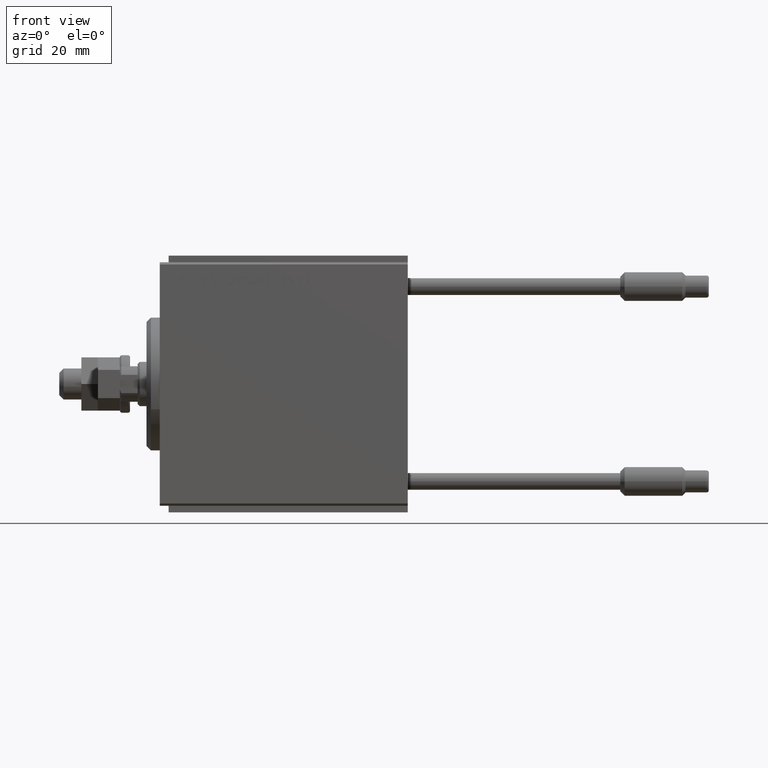
[diagram: clean part render]
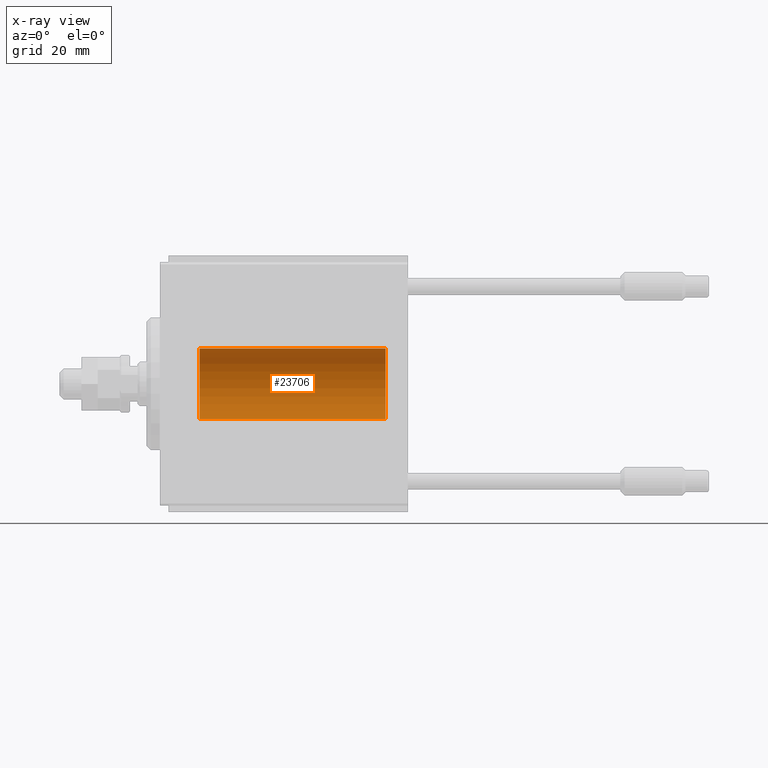
[diagram: x-ray — body ghosted, one internal face saturated and labeled with its STEP entity id]
A machine part, front view, then the same camera in x-ray: the body is ghosted and one INTERNAL B-rep face — a face not visible from any outside direction — is saturated and labeled: STEP entity #23706.
In plain terms, the highlighted cylindrical surface (edge-blend (fillet) strip) has radius 8 mm, axis along (-1, -0, -0).
Its self-contained STEP definition (entity closure, byte-faithful):
#1131 = CARTESIAN_POINT ( 'NONE',  ( 51.00000000000000000, 9.797174393178823685E-16, -7.999999999999998224 ) ) ;
#1434 = CARTESIAN_POINT ( 'NONE',  ( 51.00000000000000000, 9.797174393178823685E-16, -7.999999999999998224 ) ) ;
#5322 = VERTEX_POINT ( 'NONE', #48127 ) ;
#8339 = DIRECTION ( 'NONE',  ( 0.000000000000000000, 0.000000000000000000, 1.000000000000000000 ) ) ;
#8537 = CARTESIAN_POINT ( 'NONE',  ( 9.000000000000001776, 0.000000000000000000, 0.000000000000000000 ) ) ;
#11242 = ORIENTED_EDGE ( 'NONE', *, *, #17652, .F. ) ;
#12582 = AXIS2_PLACEMENT_3D ( 'NONE', #24433, #16771, #8339 ) ;
#12782 = VERTEX_POINT ( 'NONE', #30216 ) ;
#14194 = VECTOR ( 'NONE', #48260, 1000.000000000000000 ) ;
#14324 = EDGE_CURVE ( 'NONE', #36300, #24009, #28514, .T. ) ;
#15538 = CARTESIAN_POINT ( 'NONE',  ( 9.000000000000001776, 9.797174393178823685E-16, -7.999999999999998224 ) ) ;
#16070 = EDGE_CURVE ( 'NONE', #12782, #5322, #32680, .T. ) ;
#16771 = DIRECTION ( 'NONE',  ( -1.000000000000000000, 0.000000000000000000, 0.000000000000000000 ) ) ;
#17037 = DIRECTION ( 'NONE',  ( -1.000000000000000000, -0.000000000000000000, -0.000000000000000000 ) ) ;
#17652 = EDGE_CURVE ( 'NONE', #12782, #36300, #20771, .T. ) ;
#20771 = CIRCLE ( 'NONE', #12582, 7.999999999999998224 ) ;
#21073 = CYLINDRICAL_SURFACE ( 'NONE', #36440, 7.999999999999998224 ) ;
#23706 = ADVANCED_FACE ( 'NONE', ( #29727 ), #21073, .F. ) ;
#24009 = VERTEX_POINT ( 'NONE', #15538 ) ;
#24433 = CARTESIAN_POINT ( 'NONE',  ( 51.00000000000000000, 0.000000000000000000, 0.000000000000000000 ) ) ;
#25406 = CARTESIAN_POINT ( 'NONE',  ( 51.00000000000000000, 0.000000000000000000, 0.000000000000000000 ) ) ;
#27440 = DIRECTION ( 'NONE',  ( -1.000000000000000000, 0.000000000000000000, 0.000000000000000000 ) ) ;
#28514 = LINE ( 'NONE', #1434, #29603 ) ;
#29591 = CARTESIAN_POINT ( 'NONE',  ( 51.00000000000000000, 0.000000000000000000, 7.999999999999998224 ) ) ;
#29603 = VECTOR ( 'NONE', #17037, 1000.000000000000000 ) ;
#29701 = ORIENTED_EDGE ( 'NONE', *, *, #32690, .T. ) ;
#29727 = FACE_OUTER_BOUND ( 'NONE', #39246, .T. ) ;
#30216 = CARTESIAN_POINT ( 'NONE',  ( 51.00000000000000000, 0.000000000000000000, 7.999999999999998224 ) ) ;
#32680 = LINE ( 'NONE', #29591, #14194 ) ;
#32690 = EDGE_CURVE ( 'NONE', #5322, #24009, #48959, .T. ) ;
#33069 = DIRECTION ( 'NONE',  ( 0.000000000000000000, 0.000000000000000000, 1.000000000000000000 ) ) ;
#35934 = ORIENTED_EDGE ( 'NONE', *, *, #14324, .F. ) ;
#36300 = VERTEX_POINT ( 'NONE', #1131 ) ;
#36440 = AXIS2_PLACEMENT_3D ( 'NONE', #25406, #40479, #33069 ) ;
#39246 = EDGE_LOOP ( 'NONE', ( #35934, #11242, #40403, #29701 ) ) ;
#40403 = ORIENTED_EDGE ( 'NONE', *, *, #16070, .T. ) ;
#40479 = DIRECTION ( 'NONE',  ( -1.000000000000000000, -0.000000000000000000, -0.000000000000000000 ) ) ;
#43519 = DIRECTION ( 'NONE',  ( 0.000000000000000000, 0.000000000000000000, 1.000000000000000000 ) ) ;
#43957 = AXIS2_PLACEMENT_3D ( 'NONE', #8537, #27440, #43519 ) ;
#48127 = CARTESIAN_POINT ( 'NONE',  ( 9.000000000000001776, 0.000000000000000000, 7.999999999999998224 ) ) ;
#48260 = DIRECTION ( 'NONE',  ( -1.000000000000000000, -0.000000000000000000, -0.000000000000000000 ) ) ;
#48959 = CIRCLE ( 'NONE', #43957, 7.999999999999998224 ) ;